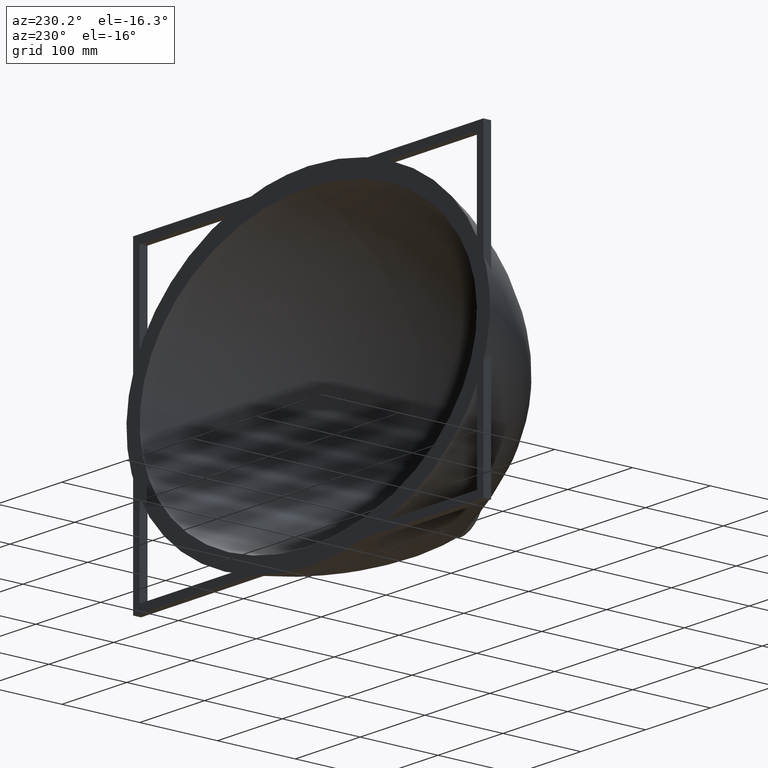
[diagram: clean part render]
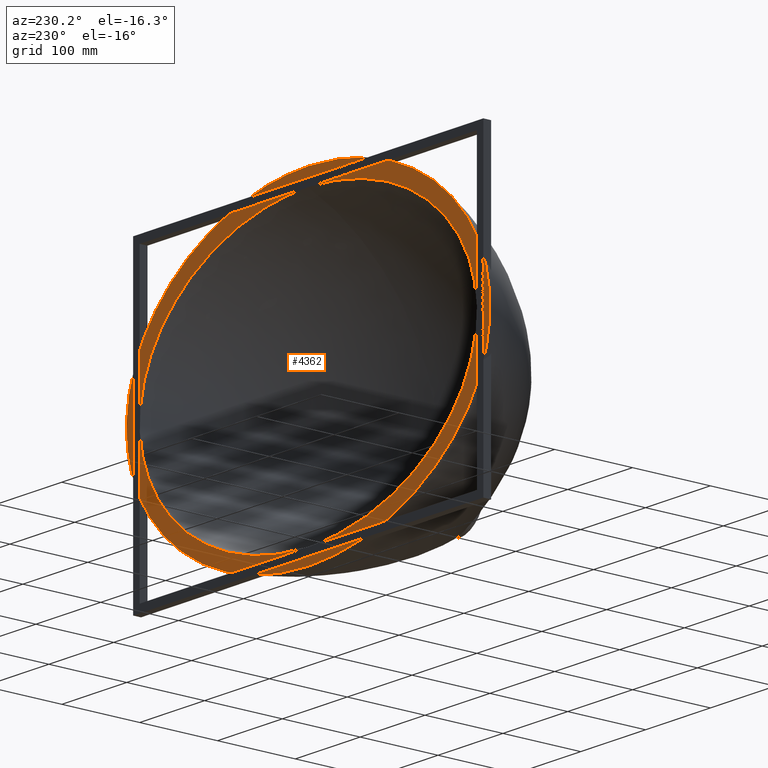
[diagram: same view with one face highlighted and labeled with its STEP entity id]
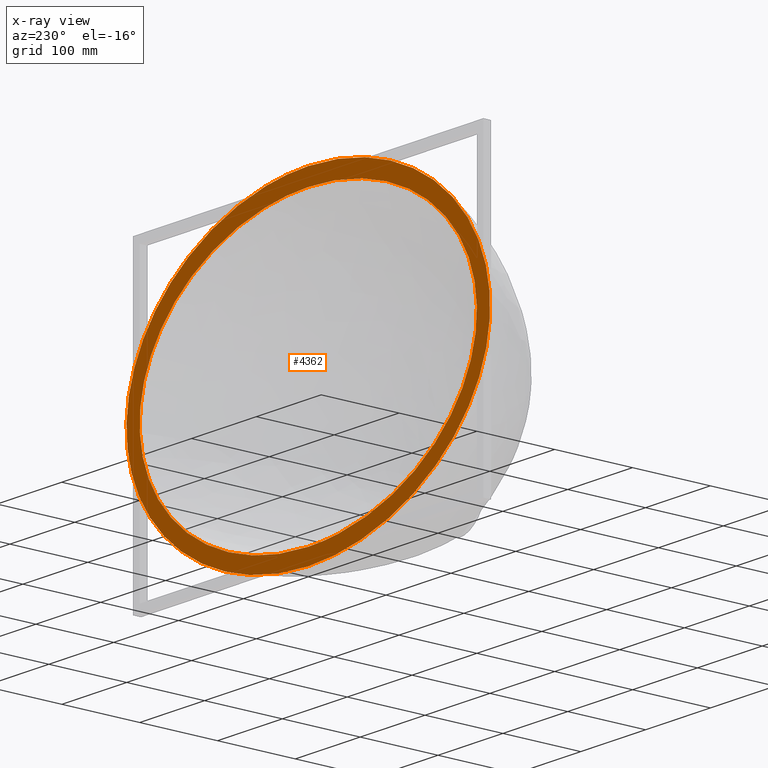
[diagram: x-ray of the same camera — body ghosted, the highlighted face saturated]
A machine part, auxiliary view. The second image highlights one B-rep face of the part: STEP entity #4362.
The next image is the same camera in x-ray: the body ghosted, the highlighted face saturated — about 0% of this face is hidden behind the body in this view.
In plain terms, the highlighted planar face has unit normal (-0, 1, -0).
Its self-contained STEP definition (entity closure, byte-faithful):
#207 = ORIENTED_EDGE ( 'NONE', *, *, #3096, .T. ) ;
#297 = CARTESIAN_POINT ( 'NONE',  ( 38.47421233022952000, 6.626788022802893900E-015, -203.7848489161159800 ) ) ;
#304 = CARTESIAN_POINT ( 'NONE',  ( 4.572232349675520200E-010, 0.0000000000000000000, -185.0000000000000000 ) ) ;
#314 = CARTESIAN_POINT ( 'NONE',  ( -2.566803417555719900, -1.232595164407830900E-029, -185.0000000000000000 ) ) ;
#326 = CARTESIAN_POINT ( 'NONE',  ( 266.6648883934851100, 5.761156784049467400E-014, -65.11524757476632900 ) ) ;
#383 = CARTESIAN_POINT ( 'NONE',  ( -6.416783112928707000, -1.232595164407830900E-029, -184.9590691978430100 ) ) ;
#398 = CARTESIAN_POINT ( 'NONE',  ( -11.54635462865013400, -1.848892746611746400E-029, -184.8230582913892300 ) ) ;
#426 = CARTESIAN_POINT ( 'NONE',  ( -34.61329639284462400, -4.930380657631323800E-029, -183.9673373527186000 ) ) ;
#448 = CARTESIAN_POINT ( 'NONE',  ( -68.94524658473652300, -1.232595164407830900E-028, -179.5850697860287300 ) ) ;
#458 = CARTESIAN_POINT ( 'NONE',  ( 12.83455205597570600, -1.810210299905876300E-016, -204.8338747823470400 ) ) ;
#460 = CARTESIAN_POINT ( 'NONE',  ( -112.1245852803711900, 9.860761315262647600E-029, -167.6884198015981200 ) ) ;
#501 = CARTESIAN_POINT ( 'NONE',  ( -146.2772247974058100, -4.930380657631323800E-029, -153.7962908367967700 ) ) ;
#514 = CARTESIAN_POINT ( 'NONE',  ( -177.9506942754561000, 5.546678239835239300E-029, -135.9285441674715900 ) ) ;
#523 = CARTESIAN_POINT ( 'NONE',  ( -205.9902479773966500, 3.081487911019577400E-029, -114.1630346393565700 ) ) ;
#536 = B_SPLINE_CURVE_WITH_KNOTS ( 'NONE', 3,
 ( #1748, #4440, #5210, #458, #297, #2223, #2235, #5242, #5267, #4901, #4474, #326, #2055, #2217, #5300, #5281, #5276, #4111, #4122, #4158, #4139, #4145, #4179, #4168, #4185, #3898, #3472, #3653, #3519 ),
 .UNSPECIFIED., .F., .F.,
 ( 4, 1, 1, 1, 1, 1, 1, 1, 1, 1, 1, 1, 1, 1, 1, 1, 1, 1, 1, 1, 1, 1, 1, 1, 1, 1, 4 ),
 ( 0.0000000000000000000, 0.006250000000000088800, 0.009374999999999911200, 0.01249999999999995600, 0.06250000000000000000, 0.09375000000000000000, 0.1250000000000000000, 0.1562500000000000000, 0.1875000000000000000, 0.2187500000000000000, 0.2500000000000000000, 0.2656250000000000000, 0.2968750000000000000, 0.3054857052560912000, 0.3125000000000000000, 0.3437500000000000000, 0.3750000000000000000, 0.3828125000000000000, 0.4062500000000000000, 0.4140625000000000000, 0.4375000000000000000, 0.4531250000000000000, 0.4687500000000000000, 0.4765625000000000000, 0.4843750000000000000, 0.4921875000000000000, 0.5000000000000000000 ),
 .UNSPECIFIED. ) ;
#559 = CARTESIAN_POINT ( 'NONE',  ( -229.4518989697168400, 3.081487911019577400E-029, -88.80985294769922700 ) ) ;
#595 = CARTESIAN_POINT ( 'NONE',  ( -244.2896152223376000, 4.930380657631323800E-029, -64.95274969968421900 ) ) ;
#603 = ORIENTED_EDGE ( 'NONE', *, *, #3831, .T. ) ;
#607 = CARTESIAN_POINT ( 'NONE',  ( -255.0079137470581300, -4.930380657631323800E-029, -38.86048423362694800 ) ) ;
#618 = CARTESIAN_POINT ( 'NONE',  ( -259.3992761697404600, 3.081487911019577400E-029, -18.69248544513646200 ) ) ;
#625 = CARTESIAN_POINT ( 'NONE',  ( -260.1059458262676600, 9.860761315262647600E-029, -0.6589969940730567900 ) ) ;
#648 = CARTESIAN_POINT ( 'NONE',  ( -259.5316745309576700, 1.294224922628222500E-028, 17.82087994229939200 ) ) ;
#654 = CARTESIAN_POINT ( 'NONE',  ( -253.7212669368725200, -1.664003471950571800E-028, 47.01350990581718000 ) ) ;
#667 = CARTESIAN_POINT ( 'NONE',  ( -237.2697526475222700, 4.930380657631323800E-029, 77.72788248232859600 ) ) ;
#681 = CARTESIAN_POINT ( 'NONE',  ( -215.3262453614607400, 3.081487911019577400E-029, 104.6215120696889800 ) ) ;
#690 = CARTESIAN_POINT ( 'NONE',  ( -197.8533207069275200, -7.395570986446985700E-029, 120.9798537218212600 ) ) ;
#702 = CARTESIAN_POINT ( 'NONE',  ( -168.3880016434328300, 6.162975822039154700E-030, 141.7818512493566300 ) ) ;
#706 = CARTESIAN_POINT ( 'NONE',  ( -139.1342931326053600, 1.479114197289397100E-028, 157.3938885333099100 ) ) ;
#712 = CARTESIAN_POINT ( 'NONE',  ( -101.5449471098858700, 1.232595164407830900E-029, 170.9625568690589400 ) ) ;
#723 = CARTESIAN_POINT ( 'NONE',  ( -73.45947751149606100, -8.011868568650901100E-029, 177.8115466436256900 ) ) ;
#726 = ORIENTED_EDGE ( 'NONE', *, *, #776, .F. ) ;
#733 = CARTESIAN_POINT ( 'NONE',  ( -50.65242750111525500, -3.697785493223492800E-029, 181.5864721567493200 ) ) ;
#739 = CARTESIAN_POINT ( 'NONE',  ( -33.58084321257378900, 1.848892746611746400E-029, 183.5771990638075400 ) ) ;
#754 = CARTESIAN_POINT ( 'NONE',  ( -16.58790103192467000, 6.779273404243070200E-029, 184.7476461294701000 ) ) ;
#776 = EDGE_CURVE ( 'NONE', #5255, #1552, #536, .T. ) ;
#803 = B_SPLINE_CURVE_WITH_KNOTS ( 'NONE', 3,
 ( #3423, #3563, #3393, #3376, #3372, #3360, #3273, #3253, #3234, #3215, #3196, #3171, #3083, #3063, #3059, #3039, #3034, #3019, #3013, #3000, #2994, #2984, #2978, #2964, #2960, #2943, #2931, #2925, #2907 ),
 .UNSPECIFIED., .F., .F.,
 ( 4, 1, 1, 1, 1, 1, 1, 1, 1, 1, 1, 1, 1, 1, 1, 1, 1, 1, 1, 1, 1, 1, 1, 1, 1, 1, 4 ),
 ( 0.5000000000000000000, 0.5078125000000000000, 0.5156250000000000000, 0.5234375000000000000, 0.5312500000000000000, 0.5468750000000000000, 0.5625000000000000000, 0.5859375000000000000, 0.5937500000000000000, 0.6171875000000000000, 0.6250000000000000000, 0.6562500000000000000, 0.6875000000000000000, 0.6945142946655007400, 0.7031250000000000000, 0.7343750000000000000, 0.7500000000000000000, 0.7812500000000000000, 0.8125000000000000000, 0.8437500000000000000, 0.8750000000000000000, 0.9062500000000000000, 0.9375000000000000000, 0.9875000000000000400, 0.9906249999999999800, 0.9937500000000000200, 1.000000000000000000 ),
 .UNSPECIFIED. ) ;
#808 = CARTESIAN_POINT ( 'NONE',  ( -5.529300341382571200, 7.601003513848291200E-029, 185.0077454772929300 ) ) ;
#834 = CARTESIAN_POINT ( 'NONE',  ( 3.744437485769802600E-009, 0.0000000000000000000, 185.0077454772356300 ) ) ;
#1018 = FACE_BOUND ( 'NONE', #2797, .T. ) ;
#1273 = VERTEX_POINT ( 'NONE', #3481 ) ;
#1552 = VERTEX_POINT ( 'NONE', #1585 ) ;
#1585 = CARTESIAN_POINT ( 'NONE',  ( 3.510841790899110700E-009, 2.164059196647728100E-014, 206.5801364084934700 ) ) ;
#1748 = CARTESIAN_POINT ( 'NONE',  ( 4.312526898087032400E-010, -3.462494714636367000E-015, -205.0510796635244900 ) ) ;
#1881 = FACE_OUTER_BOUND ( 'NONE', #4681, .T. ) ;
#2055 = CARTESIAN_POINT ( 'NONE',  ( 277.0279730740770700, 6.051487436876458400E-014, -35.71856551067243400 ) ) ;
#2078 = AXIS2_PLACEMENT_3D ( 'NONE', #4357, #3985, #3974 ) ;
#2217 = CARTESIAN_POINT ( 'NONE',  ( 280.6743342874474900, 6.515435050957124400E-014, -13.21813552440383100 ) ) ;
#2223 = CARTESIAN_POINT ( 'NONE',  ( 76.62409321307107700, 3.558805686029565500E-014, -198.4275592772430300 ) ) ;
#2235 = CARTESIAN_POINT ( 'NONE',  ( 124.4640837425859700, 3.173382364808156500E-014, -184.1067789135404100 ) ) ;
#2498 = VERTEX_POINT ( 'NONE', #2774 ) ;
#2729 = CARTESIAN_POINT ( 'NONE',  ( 4.312526898087032400E-010, -3.462494714636367000E-015, -205.0510796635244900 ) ) ;
#2732 = B_SPLINE_CURVE_WITH_KNOTS ( 'NONE', 3,
 ( #834, #808, #754, #739, #733, #723, #712, #706, #702, #690, #681, #667, #654, #648, #625, #618, #607, #595, #559, #523, #514, #501, #460, #448, #426, #398, #383, #314, #304 ),
 .UNSPECIFIED., .F., .F.,
 ( 4, 1, 1, 1, 1, 1, 1, 1, 1, 1, 1, 1, 1, 1, 1, 1, 1, 1, 1, 1, 1, 1, 1, 1, 1, 1, 4 ),
 ( 0.5000000000000000000, 0.5078125000000000000, 0.5156250000000000000, 0.5234375000000000000, 0.5312500000000000000, 0.5468750000000000000, 0.5625000000000000000, 0.5859375000000000000, 0.5937500000000000000, 0.6171875000000000000, 0.6250000000000000000, 0.6562500000000000000, 0.6875000000000000000, 0.6945142946655007400, 0.7031250000000000000, 0.7343750000000000000, 0.7500000000000000000, 0.7812500000000000000, 0.8125000000000000000, 0.8437500000000000000, 0.8750000000000000000, 0.9062500000000000000, 0.9375000000000000000, 0.9875000000000000400, 0.9906249999999999800, 0.9937500000000000200, 1.000000000000000000 ),
 .UNSPECIFIED. ) ;
#2765 = B_SPLINE_CURVE_WITH_KNOTS ( 'NONE', 3,
 ( #3955, #3951, #3948, #3940, #3936, #3929, #3920, #3915, #3910, #3906, #3897, #3893, #3889, #3876, #3871, #3867, #3853, #3846, #3839, #3835, #3830, #3828, #3813, #3804, #3800, #3796, #3792, #3785, #3781 ),
 .UNSPECIFIED., .F., .F.,
 ( 4, 1, 1, 1, 1, 1, 1, 1, 1, 1, 1, 1, 1, 1, 1, 1, 1, 1, 1, 1, 1, 1, 1, 1, 1, 1, 4 ),
 ( 0.0000000000000000000, 0.006250000000000088800, 0.009374999999999911200, 0.01249999999999995600, 0.06250000000000000000, 0.09375000000000000000, 0.1250000000000000000, 0.1562500000000000000, 0.1875000000000000000, 0.2187500000000000000, 0.2500000000000000000, 0.2656250000000000000, 0.2968750000000000000, 0.3054857052560912000, 0.3125000000000000000, 0.3437500000000000000, 0.3750000000000000000, 0.3828125000000000000, 0.4062500000000000000, 0.4140625000000000000, 0.4375000000000000000, 0.4531250000000000000, 0.4687500000000000000, 0.4765625000000000000, 0.4843750000000000000, 0.4921875000000000000, 0.5000000000000000000 ),
 .UNSPECIFIED. ) ;
#2774 = CARTESIAN_POINT ( 'NONE',  ( 3.744437485769802600E-009, 0.0000000000000000000, 185.0077454772356300 ) ) ;
#2797 = EDGE_LOOP ( 'NONE', ( #603, #207 ) ) ;
#2907 = CARTESIAN_POINT ( 'NONE',  ( 4.312526898087032400E-010, -3.462494714636367000E-015, -205.0510796635244900 ) ) ;
#2925 = CARTESIAN_POINT ( 'NONE',  ( -2.853176712826571000, -3.787069923018087400E-015, -205.0510796636025600 ) ) ;
#2931 = CARTESIAN_POINT ( 'NONE',  ( -7.132732991288722100, -4.252676983159170300E-015, -205.0007564380860600 ) ) ;
#2943 = CARTESIAN_POINT ( 'NONE',  ( -12.83455205428524700, -6.563616958121710800E-015, -204.8338747831691400 ) ) ;
#2960 = CARTESIAN_POINT ( 'NONE',  ( -38.47421232475515000, -1.770721219995987300E-014, -203.7848489189179900 ) ) ;
#2964 = CARTESIAN_POINT ( 'NONE',  ( -76.62409319053986700, -4.069384834706199000E-014, -198.4275592850701500 ) ) ;
#2978 = CARTESIAN_POINT ( 'NONE',  ( -124.4640837084150200, 2.091019040764381600E-014, -184.1067789317423300 ) ) ;
#2984 = CARTESIAN_POINT ( 'NONE',  ( -162.0483769102150700, -2.016092442157317500E-014, -167.5949327109415800 ) ) ;
#2994 = CARTESIAN_POINT ( 'NONE',  ( -196.5617085655909500, 1.047996865648528200E-014, -146.6212914914518400 ) ) ;
#3000 = CARTESIAN_POINT ( 'NONE',  ( -226.7401445796706400, 5.146856241611839300E-015, -121.3712364435094500 ) ) ;
#3013 = CARTESIAN_POINT ( 'NONE',  ( -251.5161483108772100, 6.772245020281023500E-015, -92.25477112375035900 ) ) ;
#3019 = CARTESIAN_POINT ( 'NONE',  ( -266.6648883625137500, 1.305783983928477100E-014, -65.11524765488188400 ) ) ;
#3034 = CARTESIAN_POINT ( 'NONE',  ( -277.0279730554156600, -1.396516683618831100E-014, -35.71856560146389400 ) ) ;
#3039 = CARTESIAN_POINT ( 'NONE',  ( -280.6743342854092600, 8.649774297937435700E-015, -13.21813558965489200 ) ) ;
#3059 = CARTESIAN_POINT ( 'NONE',  ( -280.3862413088700700, 2.740687567951473500E-014, 6.747780076105865300 ) ) ;
#3063 = CARTESIAN_POINT ( 'NONE',  ( -278.6745928249896500, 3.561612616427652900E-014, 27.13743797444133000 ) ) ;
#3083 = CARTESIAN_POINT ( 'NONE',  ( -270.7077346124226600, -4.865336584612944900E-014, 59.03535601063270400 ) ) ;
#3096 = EDGE_CURVE ( 'NONE', #2498, #1273, #2732, .T. ) ;
#3171 = CARTESIAN_POINT ( 'NONE',  ( -251.6600619459401000, 1.047683816170153000E-014, 92.13723686688241800 ) ) ;
#3196 = CARTESIAN_POINT ( 'NONE',  ( -227.3860808547242700, 4.135809948857306200E-015, 120.8901657387457500 ) ) ;
#3215 = CARTESIAN_POINT ( 'NONE',  ( -208.4659871972690200, -2.589700055501236600E-014, 138.2774309085660600 ) ) ;
#3234 = CARTESIAN_POINT ( 'NONE',  ( -177.0331222767266900, -3.909000390621204400E-015, 160.3536673777236100 ) ) ;
#3253 = CARTESIAN_POINT ( 'NONE',  ( -146.1429383013714300, 3.578964718990529300E-014, 176.9210053480932200 ) ) ;
#3273 = CARTESIAN_POINT ( 'NONE',  ( -106.6481701289818500, -1.762129183784000900E-015, 191.4028018900090200 ) ) ;
#3360 = CARTESIAN_POINT ( 'NONE',  ( -77.18796045428591400, -2.688476361159805600E-014, 198.7663702774486900 ) ) ;
#3372 = CARTESIAN_POINT ( 'NONE',  ( -53.26595660948179800, -1.376469548634295700E-014, 202.8496754718151700 ) ) ;
#3376 = CARTESIAN_POINT ( 'NONE',  ( -35.34244727615431000, 2.741371447376697000E-015, 205.0141799264608800 ) ) ;
#3393 = CARTESIAN_POINT ( 'NONE',  ( -17.48360314230773200, 1.770162958421802600E-014, 206.2945001934735100 ) ) ;
#3423 = CARTESIAN_POINT ( 'NONE',  ( 3.510841790899110700E-009, 2.164059196647728100E-014, 206.5801364084934700 ) ) ;
#3472 = CARTESIAN_POINT ( 'NONE',  ( 17.48360314876685700, 2.225615242186635600E-014, 206.2945001940140100 ) ) ;
#3481 = CARTESIAN_POINT ( 'NONE',  ( 4.572232349675520200E-010, 0.0000000000000000000, -185.0000000000000000 ) ) ;
#3519 = CARTESIAN_POINT ( 'NONE',  ( 3.510841790899110700E-009, 2.164059196647728100E-014, 206.5801364084934700 ) ) ;
#3563 = CARTESIAN_POINT ( 'NONE',  ( -5.827867711668256200, 2.088150482686922900E-014, 206.5801364084034300 ) ) ;
#3653 = CARTESIAN_POINT ( 'NONE',  ( 5.827867718689940800, 2.239967910608533500E-014, 206.5801364085835700 ) ) ;
#3748 = ORIENTED_EDGE ( 'NONE', *, *, #5089, .F. ) ;
#3781 = CARTESIAN_POINT ( 'NONE',  ( 3.744437485769802600E-009, 0.0000000000000000000, 185.0077454772356300 ) ) ;
#3785 = CARTESIAN_POINT ( 'NONE',  ( 5.529300348871447400, 7.806436041249595600E-029, 185.0077454771783600 ) ) ;
#3792 = CARTESIAN_POINT ( 'NONE',  ( 16.58790103883738700, 7.395570986446985700E-029, 184.7476461291264500 ) ) ;
#3796 = CARTESIAN_POINT ( 'NONE',  ( 33.58084321689379000, 1.232595164407830900E-029, 183.5771990633527700 ) ) ;
#3800 = CARTESIAN_POINT ( 'NONE',  ( 50.65242750113803500, -4.930380657631323800E-029, 181.5864721566628600 ) ) ;
#3804 = CARTESIAN_POINT ( 'NONE',  ( 73.45947750377109700, -9.860761315262647600E-029, 177.8115466449803300 ) ) ;
#3813 = CARTESIAN_POINT ( 'NONE',  ( 101.5449470893769300, -1.232595164407830900E-029, 170.9625568745314900 ) ) ;
#3828 = CARTESIAN_POINT ( 'NONE',  ( 139.1342930917562900, 1.232595164407830900E-028, 157.3938885502267900 ) ) ;
#3830 = CARTESIAN_POINT ( 'NONE',  ( 168.3880015876912400, 0.0000000000000000000, 141.7818512817267400 ) ) ;
#3831 = EDGE_CURVE ( 'NONE', #1273, #2498, #2765, .T. ) ;
#3835 = CARTESIAN_POINT ( 'NONE',  ( 197.8533206427430900, -7.395570986446985700E-029, 120.9798537739468100 ) ) ;
#3839 = CARTESIAN_POINT ( 'NONE',  ( 215.3262452974707600, -6.162975822039154700E-030, 104.6215121355303200 ) ) ;
#3846 = CARTESIAN_POINT ( 'NONE',  ( 237.2697525929354200, 8.011868568650901100E-029, 77.72788256511545100 ) ) ;
#3853 = CARTESIAN_POINT ( 'NONE',  ( 253.7212669017755500, -1.848892746611746400E-029, 47.01351000140578400 ) ) ;
#3867 = CARTESIAN_POINT ( 'NONE',  ( 259.5316745247481000, 1.232595164407830900E-029, 17.82088000448748800 ) ) ;
#3871 = CARTESIAN_POINT ( 'NONE',  ( 260.1059458264750200, 2.465190328815661900E-029, -0.6589969328866943600 ) ) ;
#3876 = CARTESIAN_POINT ( 'NONE',  ( 259.3992761764650900, 3.697785493223492800E-029, -18.69248538637459900 ) ) ;
#3889 = CARTESIAN_POINT ( 'NONE',  ( 255.0079137717297000, 1.848892746611746400E-029, -38.86048415290631700 ) ) ;
#3893 = CARTESIAN_POINT ( 'NONE',  ( 244.2896152594268200, 1.232595164407830900E-029, -64.95274962984925100 ) ) ;
#3897 = CARTESIAN_POINT ( 'NONE',  ( 229.4518990156732900, 0.0000000000000000000, -88.80985288877889200 ) ) ;
#3898 = CARTESIAN_POINT ( 'NONE',  ( 35.34244728008744800, 6.650076095110215800E-015, 205.0141799277577900 ) ) ;
#3906 = CARTESIAN_POINT ( 'NONE',  ( 205.9902480284779900, -1.232595164407830900E-029, -114.1630345934451200 ) ) ;
#3910 = CARTESIAN_POINT ( 'NONE',  ( 177.9506943263256700, 8.628166150854816600E-029, -135.9285441345604100 ) ) ;
#3915 = CARTESIAN_POINT ( 'NONE',  ( 146.2772248432047500, -7.395570986446985700E-029, -153.7962908153193400 ) ) ;
#3920 = CARTESIAN_POINT ( 'NONE',  ( 112.1245853174007400, 3.697785493223492800E-029, -167.6884197895803400 ) ) ;
#3929 = CARTESIAN_POINT ( 'NONE',  ( 68.94524660888869500, 8.628166150854816600E-029, -179.5850697822002600 ) ) ;
#3936 = CARTESIAN_POINT ( 'NONE',  ( 34.61329639869962400, 6.162975822039154700E-030, -183.9673373519855200 ) ) ;
#3940 = CARTESIAN_POINT ( 'NONE',  ( 11.54635463045116600, -6.162975822039154700E-030, -184.8230582912633500 ) ) ;
#3948 = CARTESIAN_POINT ( 'NONE',  ( 6.416783114061224100, -1.232595164407830900E-029, -184.9590691978137900 ) ) ;
#3951 = CARTESIAN_POINT ( 'NONE',  ( 2.566803418470212400, -1.232595164407830900E-029, -185.0000000000000000 ) ) ;
#3955 = CARTESIAN_POINT ( 'NONE',  ( 4.572232349675520200E-010, 0.0000000000000000000, -185.0000000000000000 ) ) ;
#3974 = DIRECTION ( 'NONE',  ( 1.295219289667108000E-012, 1.726837044558294500E-016, 1.000000000000000000 ) ) ;
#3985 = DIRECTION ( 'NONE',  ( -1.137592378558375400E-016, 1.000000000000000000, -1.726837044556821100E-016 ) ) ;
#3991 = PLANE ( 'NONE',  #2078 ) ;
#4111 = CARTESIAN_POINT ( 'NONE',  ( 251.6600618899791500, 6.184959362703020600E-014, 92.13723695732404900 ) ) ;
#4122 = CARTESIAN_POINT ( 'NONE',  ( 227.3860807907819300, 3.104777566422214500E-014, 120.8901658117633100 ) ) ;
#4139 = CARTESIAN_POINT ( 'NONE',  ( 177.0331222219847400, 2.237218269502636000E-014, 160.3536674166088000 ) ) ;
#4145 = CARTESIAN_POINT ( 'NONE',  ( 146.1429382613359800, 5.181124533649423500E-014, 176.9210053709582000 ) ) ;
#4158 = CARTESIAN_POINT ( 'NONE',  ( 208.4659871337437700, 7.686833511667005600E-015, 138.2774309676355000 ) ) ;
#4168 = CARTESIAN_POINT ( 'NONE',  ( 77.18796044650910900, -1.992349940275841600E-014, 198.7663702824324000 ) ) ;
#4179 = CARTESIAN_POINT ( 'NONE',  ( 106.6481701087779500, 8.041367689449164800E-015, 191.4028019002503800 ) ) ;
#4185 = CARTESIAN_POINT ( 'NONE',  ( 53.26595660923548800, -8.783759582423252800E-015, 202.8496754743139300 ) ) ;
#4357 = CARTESIAN_POINT ( 'NONE',  ( 4.312526898087032400E-010, -3.462494714636367000E-015, -205.0510796635244900 ) ) ;
#4362 = ADVANCED_FACE ( 'NONE', ( #1018, #1881 ), #3991, .T. ) ;
#4440 = CARTESIAN_POINT ( 'NONE',  ( 2.853176713689126800, -3.137919506254640300E-015, -205.0510796634463900 ) ) ;
#4474 = CARTESIAN_POINT ( 'NONE',  ( 251.5161483508349200, 5.121753482355597100E-014, -92.25477105462607600 ) ) ;
#4681 = EDGE_LOOP ( 'NONE', ( #726, #3748 ) ) ;
#4901 = CARTESIAN_POINT ( 'NONE',  ( 226.7401446251990100, 4.203962026765967400E-014, -121.3712363878846600 ) ) ;
#5089 = EDGE_CURVE ( 'NONE', #1552, #5255, #803, .T. ) ;
#5210 = CARTESIAN_POINT ( 'NONE',  ( 7.132732992354983800, -2.629800941250560000E-015, -205.0007564376678300 ) ) ;
#5242 = CARTESIAN_POINT ( 'NONE',  ( 162.0483769521070800, 9.173956303122213200E-015, -167.5949326817669500 ) ) ;
#5255 = VERTEX_POINT ( 'NONE', #2729 ) ;
#5267 = CARTESIAN_POINT ( 'NONE',  ( 196.5617086116237700, 6.244417699665743500E-014, -146.6212914496558400 ) ) ;
#5276 = CARTESIAN_POINT ( 'NONE',  ( 270.7077345740138400, 4.091541715711027200E-014, 59.03535611449461800 ) ) ;
#5281 = CARTESIAN_POINT ( 'NONE',  ( 278.6745928164090200, 5.441763696587162400E-014, 27.13743804263394200 ) ) ;
#5300 = CARTESIAN_POINT ( 'NONE',  ( 280.3862413055192600, 6.003047678741132000E-014, 6.747780143511700900 ) ) ;